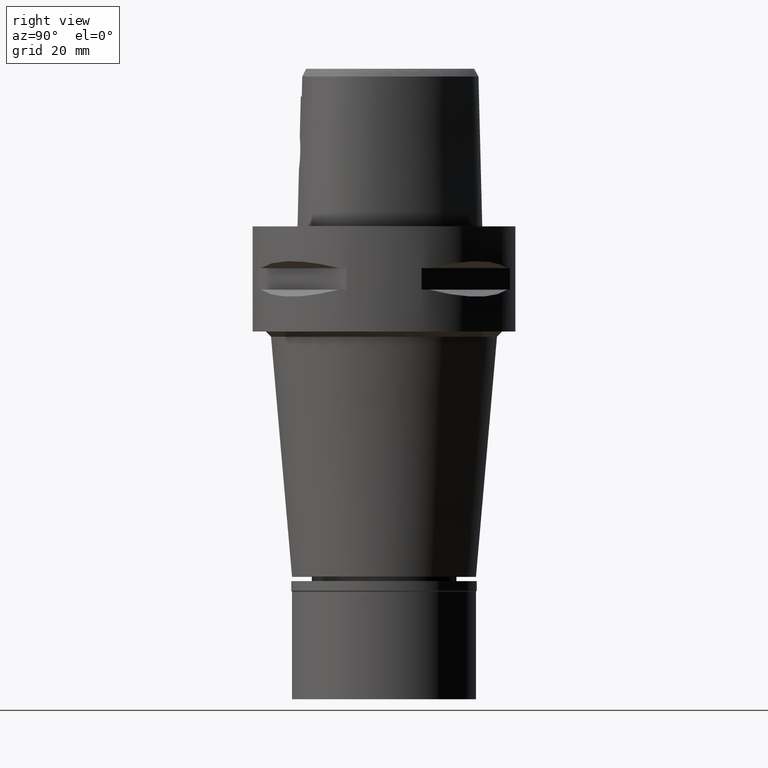
[diagram: clean part render]
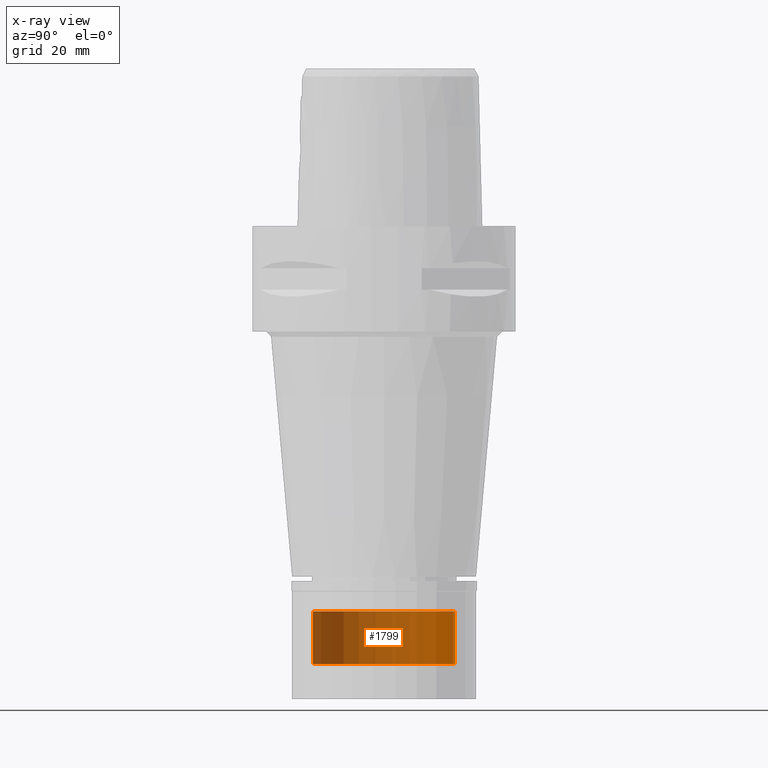
[diagram: x-ray — body ghosted, one internal face saturated and labeled with its STEP entity id]
A machine part, right view, then the same camera in x-ray: the body is ghosted and one INTERNAL B-rep face — a face not visible from any outside direction — is saturated and labeled: STEP entity #1799.
In plain terms, the highlighted cylindrical surface (partial cylindrical patch) has radius 13.5 mm, axis along (0, 0, -1).
Its self-contained STEP definition (entity closure, byte-faithful):
#17 = VERTEX_POINT ( 'NONE', #2669 ) ;
#53 = CARTESIAN_POINT ( 'NONE',  ( 0.0000000000000000000, -13.50000000000000000, -73.29999999999999716 ) ) ;
#71 = VERTEX_POINT ( 'NONE', #53 ) ;
#84 = CARTESIAN_POINT ( 'NONE',  ( 0.0000000000000000000, -13.50000000000000000, -83.29999999999999716 ) ) ;
#231 = DIRECTION ( 'NONE',  ( 0.0000000000000000000, -1.000000000000000000, 0.0000000000000000000 ) ) ;
#326 = AXIS2_PLACEMENT_3D ( 'NONE', #3526, #1260, #3199 ) ;
#468 = EDGE_CURVE ( 'NONE', #71, #525, #3713, .T. ) ;
#525 = VERTEX_POINT ( 'NONE', #4768 ) ;
#752 = LINE ( 'NONE', #3500, #4420 ) ;
#854 = EDGE_CURVE ( 'NONE', #525, #17, #1956, .T. ) ;
#1110 = DIRECTION ( 'NONE',  ( 0.0000000000000000000, 0.0000000000000000000, -1.000000000000000000 ) ) ;
#1161 = DIRECTION ( 'NONE',  ( 0.0000000000000000000, 0.0000000000000000000, -1.000000000000000000 ) ) ;
#1260 = DIRECTION ( 'NONE',  ( 0.0000000000000000000, 0.0000000000000000000, -1.000000000000000000 ) ) ;
#1536 = ORIENTED_EDGE ( 'NONE', *, *, #4592, .F. ) ;
#1799 = ADVANCED_FACE ( 'NONE', ( #3965 ), #4640, .T. ) ;
#1956 = LINE ( 'NONE', #3478, #3795 ) ;
#1978 = EDGE_CURVE ( 'NONE', #17, #2705, #3806, .T. ) ;
#2072 = ORIENTED_EDGE ( 'NONE', *, *, #1978, .T. ) ;
#2292 = DIRECTION ( 'NONE',  ( 0.0000000000000000000, 1.000000000000000000, 0.0000000000000000000 ) ) ;
#2393 = CARTESIAN_POINT ( 'NONE',  ( 0.0000000000000000000, 1.275653338331999844E-14, -83.29999999999999716 ) ) ;
#2657 = DIRECTION ( 'NONE',  ( 0.0000000000000000000, 0.0000000000000000000, 1.000000000000000000 ) ) ;
#2669 = CARTESIAN_POINT ( 'NONE',  ( 0.0000000000000000000, 13.50000000000000000, -83.29999999999999716 ) ) ;
#2705 = VERTEX_POINT ( 'NONE', #84 ) ;
#2876 = CARTESIAN_POINT ( 'NONE',  ( 0.0000000000000000000, 1.275653338331999844E-14, -73.29999999999999716 ) ) ;
#3018 = ORIENTED_EDGE ( 'NONE', *, *, #468, .T. ) ;
#3199 = DIRECTION ( 'NONE',  ( 0.0000000000000000000, -1.000000000000000000, 0.0000000000000000000 ) ) ;
#3280 = DIRECTION ( 'NONE',  ( 0.0000000000000000000, 0.0000000000000000000, -1.000000000000000000 ) ) ;
#3292 = EDGE_LOOP ( 'NONE', ( #2072, #1536, #3018, #4530 ) ) ;
#3478 = CARTESIAN_POINT ( 'NONE',  ( 0.0000000000000000000, 13.50000000000000000, -73.29999999999999716 ) ) ;
#3500 = CARTESIAN_POINT ( 'NONE',  ( 0.0000000000000000000, -13.50000000000000000, -73.29999999999999716 ) ) ;
#3526 = CARTESIAN_POINT ( 'NONE',  ( 0.0000000000000000000, 1.275653338331999844E-14, 4.165000000000000036 ) ) ;
#3713 = CIRCLE ( 'NONE', #3938, 13.50000000000000000 ) ;
#3795 = VECTOR ( 'NONE', #1161, 1000.000000000000000 ) ;
#3806 = CIRCLE ( 'NONE', #4740, 13.50000000000000000 ) ;
#3938 = AXIS2_PLACEMENT_3D ( 'NONE', #2876, #3280, #231 ) ;
#3965 = FACE_OUTER_BOUND ( 'NONE', #3292, .T. ) ;
#4420 = VECTOR ( 'NONE', #1110, 1000.000000000000000 ) ;
#4530 = ORIENTED_EDGE ( 'NONE', *, *, #854, .T. ) ;
#4592 = EDGE_CURVE ( 'NONE', #71, #2705, #752, .T. ) ;
#4640 = CYLINDRICAL_SURFACE ( 'NONE', #326, 13.50000000000000000 ) ;
#4740 = AXIS2_PLACEMENT_3D ( 'NONE', #2393, #2657, #2292 ) ;
#4768 = CARTESIAN_POINT ( 'NONE',  ( 0.0000000000000000000, 13.50000000000000000, -73.29999999999999716 ) ) ;